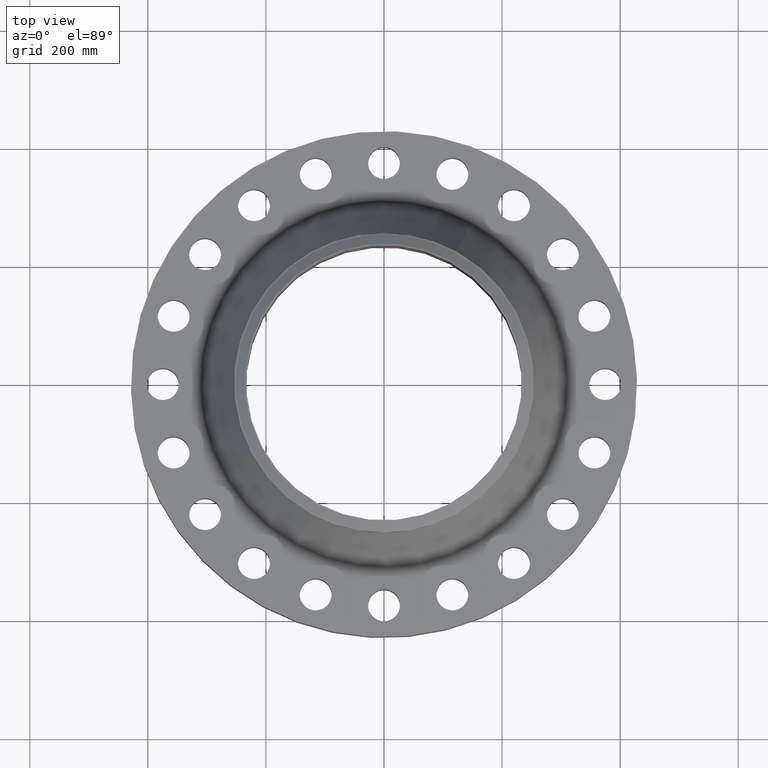
[diagram: clean part render]
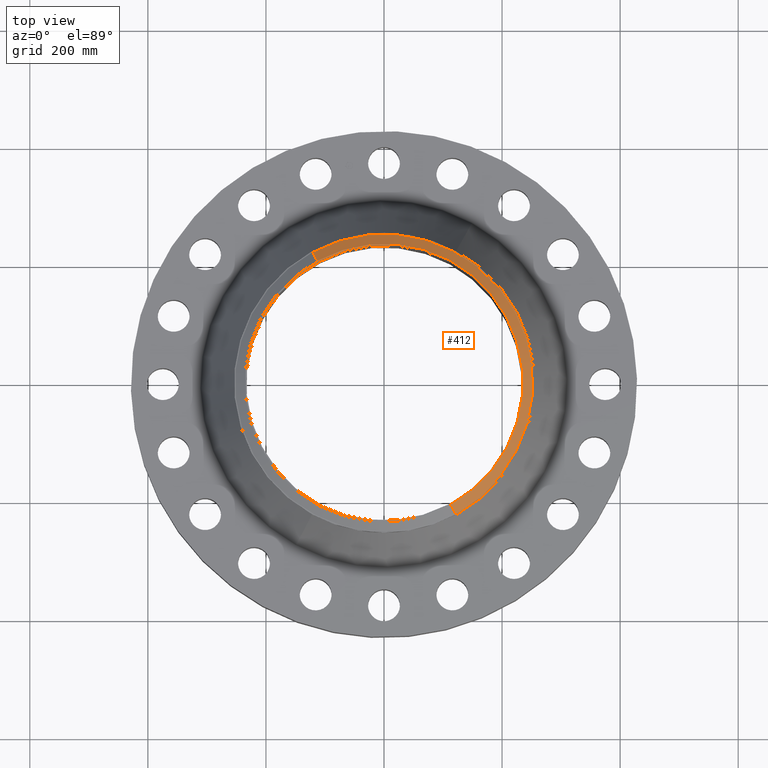
[diagram: same view with one face highlighted and labeled with its STEP entity id]
A machine part, top view. The second image highlights one B-rep face of the part: STEP entity #412.
In plain terms, the highlighted conical surface has half-angle 52.5 deg.
Its self-contained STEP definition (entity closure, byte-faithful):
#347=AXIS2_PLACEMENT_3D('Circle Axis2P3D',#345,#346,$) ;
#385=AXIS2_PLACEMENT_3D('Cone Axis2P3D',#382,#383,#384) ;
#396=AXIS2_PLACEMENT_3D('Circle Axis2P3D',#394,#395,$) ;
#345=CARTESIAN_POINT('Axis2P3D Location',(0.,0.,9.75000000004)) ;
#349=CARTESIAN_POINT('Vertex',(4.44271189112,-8.13232956781,9.75000000004)) ;
#351=CARTESIAN_POINT('Vertex',(-4.44271189112,8.13232956781,9.75000000004)) ;
#382=CARTESIAN_POINT('Axis2P3D Location',(0.,0.,9.75000000004)) ;
#387=CARTESIAN_POINT('Line Origine',(4.59765319367,-8.41594771971,9.5020143726)) ;
#391=CARTESIAN_POINT('Vertex',(4.75259449622,-8.69956587161,9.25402874517)) ;
#394=CARTESIAN_POINT('Axis2P3D Location',(0.,0.,9.25402874517)) ;
#398=CARTESIAN_POINT('Vertex',(-4.75259449622,8.69956587161,9.25402874517)) ;
#401=CARTESIAN_POINT('Line Origine',(-4.59765319367,8.41594771971,9.5020143726)) ;
#346=DIRECTION('Axis2P3D Direction',(0.,0.,-0.0393700787402)) ;
#383=DIRECTION('Axis2P3D Direction',(-0.,-0.,-0.0393700787402)) ;
#384=DIRECTION('Axis2P3D XDirection',(0.0188750212049,-0.0345504945626,0.)) ;
#388=DIRECTION('Vector Direction',(0.014974561121,-0.02741075027,-0.023966985394)) ;
#395=DIRECTION('Axis2P3D Direction',(0.,0.,-0.0393700787402)) ;
#402=DIRECTION('Vector Direction',(-0.014974561121,0.02741075027,-0.023966985394)) ;
#389=VECTOR('Line Direction',#388,0.0393700787402) ;
#403=VECTOR('Line Direction',#402,0.0393700787402) ;
#407=ORIENTED_EDGE('',*,*,#353,.F.) ;
#408=ORIENTED_EDGE('',*,*,#393,.T.) ;
#409=ORIENTED_EDGE('',*,*,#400,.T.) ;
#410=ORIENTED_EDGE('',*,*,#405,.F.) ;
#412=ADVANCED_FACE('PartBody',(#411),#386,.T.) ;
#348=CIRCLE('generated circle',#347,9.26674015752) ;
#397=CIRCLE('generated circle',#396,9.91310248106) ;
#386=CONICAL_SURFACE('Cone',#385,9.26674015752,0.916297857297) ;
#353=EDGE_CURVE('',#350,#352,#348,.F.) ;
#393=EDGE_CURVE('',#350,#392,#390,.T.) ;
#400=EDGE_CURVE('',#392,#399,#397,.F.) ;
#405=EDGE_CURVE('',#352,#399,#404,.T.) ;
#406=EDGE_LOOP('',(#407,#408,#409,#410)) ;
#411=FACE_OUTER_BOUND('',#406,.T.) ;
#390=LINE('Line',#387,#389) ;
#404=LINE('Line',#401,#403) ;
#350=VERTEX_POINT('',#349) ;
#352=VERTEX_POINT('',#351) ;
#392=VERTEX_POINT('',#391) ;
#399=VERTEX_POINT('',#398) ;